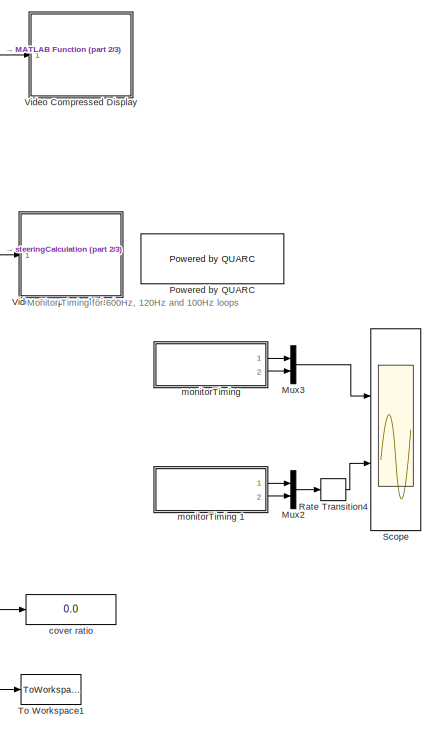
[diagram: root canvas - part 1/3, middle right region]
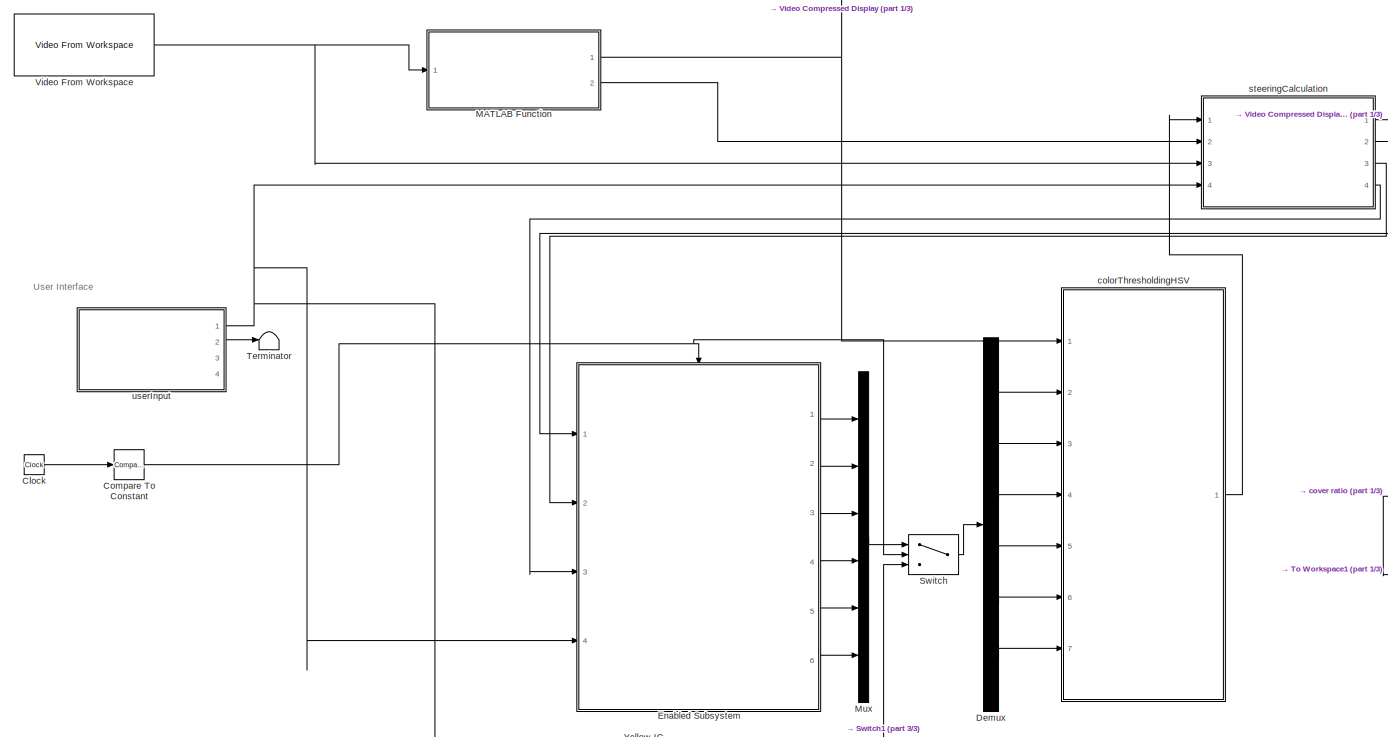
[diagram: root canvas - part 2/3, central region]
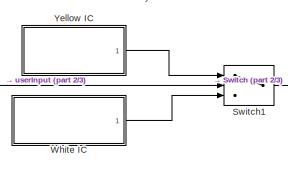
[diagram: root canvas - part 3/3, bottom center region]
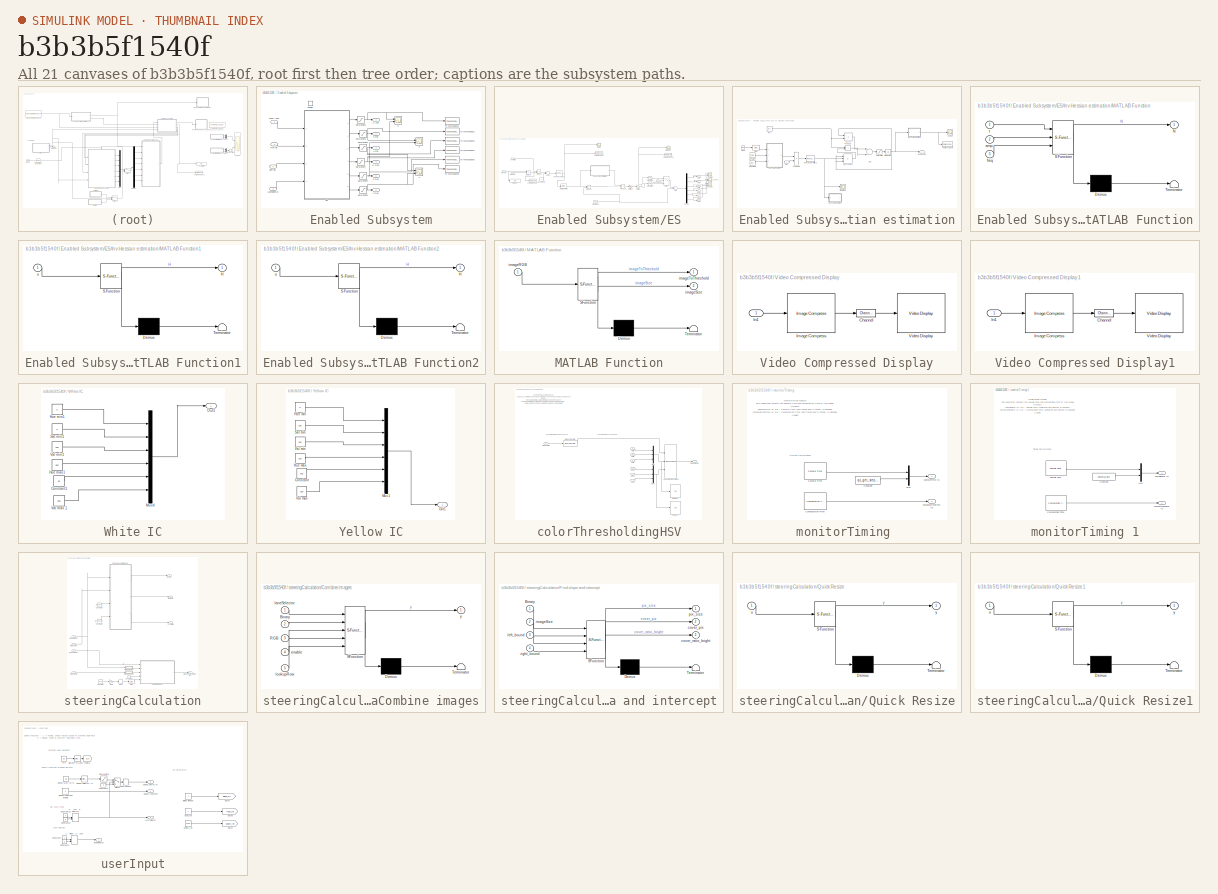
[diagram: thumbnail index - all 21 canvases of the model, root first then tree order]
MODEL slx_b3b3b5f1540f
KIND model
CONFIG AbsTol = auto
CONFIG EnableMultiTasking = off
CONFIG FixedStep = 1/120
CONFIG MaxStep = auto
CONFIG MinStep = auto
CONFIG RelTol = 1e-3
CONFIG SampleTimeConstraint = Unconstrained
CONFIG Solver = ode2
CONFIG SolverName = ode2
CONFIG StartTime = 0.0
CONFIG StopTime = 160
WORKSPACE source: MAT-file member
WORKSPACE MCOS: class17 (value not decoded)
BLOCK [Clock] Clock
BLOCK [Reference] Compare To Constant  REF=simulink/Logic and Bit
Operations/Compare
To Constant
  Ports = [1, 1]
  SourceBlock = simulink/Logic and Bit\nOperations/Compare\nTo Constant
  SourceProductBaseCode = SL
  SourceProductName = Simulink
  SourceType = Compare To Constant
BLOCK [Demux] Demux
  DisplayOption = bar
  Outputs = 6
  Ports = [1, 6]
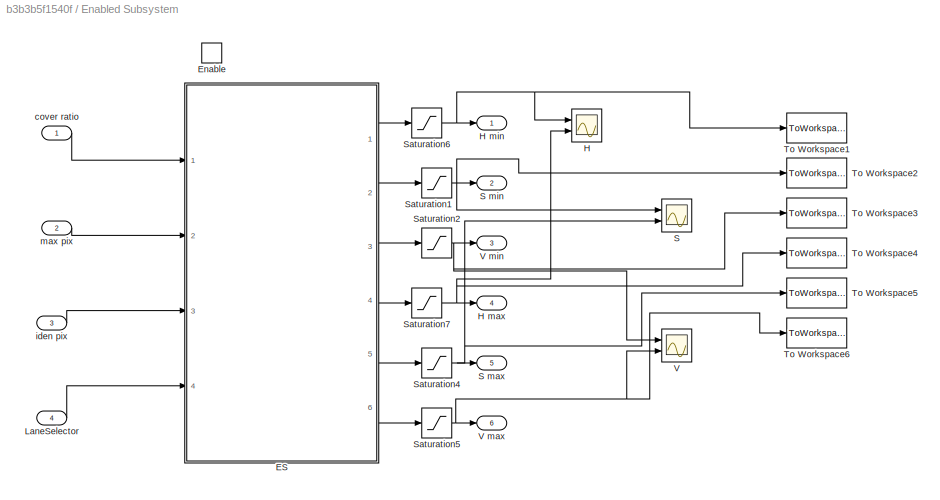
BLOCK [SubSystem] Enabled Subsystem
  Ports = [4, 6, 1]
  RequestExecContextInheritance = off
  TreatAsAtomicUnit = on
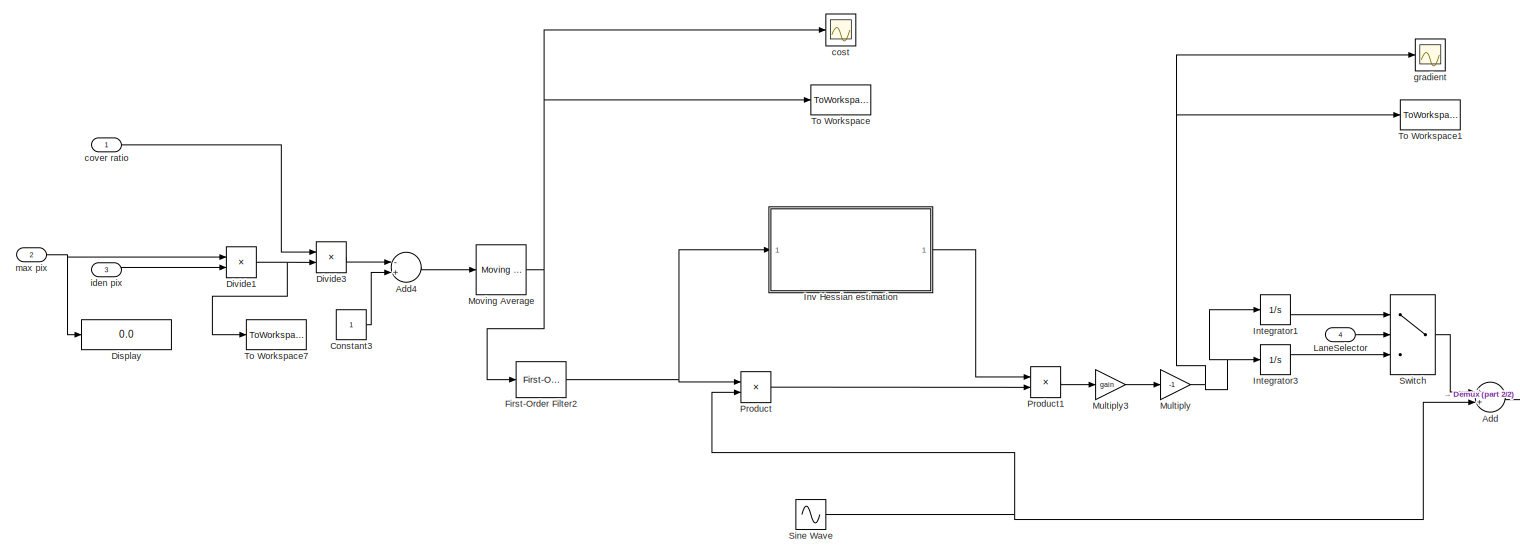
[diagram: Enabled Subsystem/ES - part 1/2, most of the canvas]
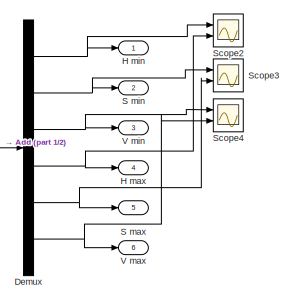
[diagram: Enabled Subsystem/ES - part 2/2, bottom right region]
BLOCK [SubSystem] Enabled Subsystem/ES
  Ports = [4, 6]
  RequestExecContextInheritance = off
BLOCK [Sum] Enabled Subsystem/ES/Add
  InputSameDT = off
  OutDataTypeStr = Inherit: Inherit via internal rule
  Ports = [2, 1]
  SaturateOnIntegerOverflow = off
BLOCK [Sum] Enabled Subsystem/ES/Add4
  InputSameDT = off
  Inputs = -+
  OutDataTypeStr = Inherit: Inherit via internal rule
  Ports = [2, 1]
  SaturateOnIntegerOverflow = off
BLOCK [Constant] Enabled Subsystem/ES/Constant3
BLOCK [Demux] Enabled Subsystem/ES/Demux
  DisplayOption = bar
  Outputs = 6
  Ports = [1, 6]
BLOCK [Display] Enabled Subsystem/ES/Display
  Decimation = 1
  Ports = [1]
BLOCK [Product] Enabled Subsystem/ES/Divide1
  InputSameDT = off
  Inputs = /*
  OutDataTypeStr = Inherit: Inherit via internal rule
  Ports = [2, 1]
  RndMeth = Floor
  SaturateOnIntegerOverflow = off
BLOCK [Product] Enabled Subsystem/ES/Divide3
  InputSameDT = off
  Inputs = **
  OutDataTypeStr = Inherit: Inherit via internal rule
  Ports = [2, 1]
  RndMeth = Floor
  SaturateOnIntegerOverflow = off
BLOCK [Reference] Enabled Subsystem/ES/First-Order Filter2  REF=powerlib_meascontrol/Filters/First-Order
Filter
  Ports = [1, 1]
  SourceBlock = powerlib_meascontrol/Filters/First-Order\nFilter
  SourceProductBaseCode = PS
  SourceProductName = Simscape Electrical
  SourceType = First-Order Filter
BLOCK [Outport] Enabled Subsystem/ES/H max
  IconDisplay = Port number
  Port = 4
BLOCK [Outport] Enabled Subsystem/ES/H min
  IconDisplay = Port number
BLOCK [Integrator] Enabled Subsystem/ES/Integrator1
  InitialCondition = [0;100;150;100;255;255]
  LowerSaturationLimit = 0
  Ports = [1, 1]
  UpperSaturationLimit = 255
BLOCK [Integrator] Enabled Subsystem/ES/Integrator3
  InitialCondition = [0;0;150;255;50;255]
  LowerSaturationLimit = 0
  Ports = [1, 1]
  UpperSaturationLimit = 255
BLOCK [SubSystem] Enabled Subsystem/ES/Inv Hessian estimation
  Ports = [1, 1]
  RequestExecContextInheritance = off
BLOCK [Sum] Enabled Subsystem/ES/Inv Hessian estimation/Add
  InputSameDT = off
  Inputs = +-
  OutDataTypeStr = Inherit: Inherit via internal rule
  Ports = [2, 1]
  SaturateOnIntegerOverflow = off
BLOCK [Bias] Enabled Subsystem/ES/Inv Hessian estimation/Bias
  Bias = -15
  SaturateOnIntegerOverflow = off
BLOCK [Clock] Enabled Subsystem/ES/Inv Hessian estimation/Clock
  Decimation = 100
BLOCK [Constant] Enabled Subsystem/ES/Inv Hessian estimation/Constant
  Value = amp
BLOCK [Constant] Enabled Subsystem/ES/Inv Hessian estimation/Constant1
  Value = freq
BLOCK [Reference] Enabled Subsystem/ES/Inv Hessian estimation/First-Order Filter2  REF=powerlib_meascontrol/Filters/First-Order
Filter
  Ports = [1, 1]
  SourceBlock = powerlib_meascontrol/Filters/First-Order\nFilter
  SourceProductBaseCode = PS
  SourceProductName = Simscape Electrical
  SourceType = First-Order Filter
BLOCK [Inport] Enabled Subsystem/ES/Inv Hessian estimation/In1
  IconDisplay = Port number
BLOCK [Integrator] Enabled Subsystem/ES/Inv Hessian estimation/Integrator
  InitialCondition = IC
  Ports = [1, 1]
BLOCK [Outport] Enabled Subsystem/ES/Inv Hessian estimation/Inv Hessian
  IconDisplay = Port number
BLOCK [SubSystem] Enabled Subsystem/ES/Inv Hessian estimation/MATLAB Function
  ErrorFcn = Stateflow.Translate.translate
  PermitHierarchicalResolution = ExplicitOnly
  Ports = [3, 1]
  RequestExecContextInheritance = off
  SFBlockType = MATLAB Function
  TreatAsAtomicUnit = on
BLOCK [Demux] Enabled Subsystem/ES/Inv Hessian estimation/MATLAB Function/ Demux 
  Outputs = 1
  Ports = [1, 1]
BLOCK [S-Function] Enabled Subsystem/ES/Inv Hessian estimation/MATLAB Function/ SFunction 
  EnableBusSupport = on
  FunctionName = sf_sfun
  PortCounts = [3 2]
  Ports = [3, 2]
  SFcnIsStateOwnerBlock = off
  SFunctionDeploymentMode = off
  Tag = Stateflow S-Function ES_experiment_newton 1
BLOCK [Terminator] Enabled Subsystem/ES/Inv Hessian estimation/MATLAB Function/ Terminator 
BLOCK [Outport] Enabled Subsystem/ES/Inv Hessian estimation/MATLAB Function/N
  IconDisplay = Port number
BLOCK [Inport] Enabled Subsystem/ES/Inv Hessian estimation/MATLAB Function/amp
  IconDisplay = Port number
  Port = 2
BLOCK [Inport] Enabled Subsystem/ES/Inv Hessian estimation/MATLAB Function/freq
  IconDisplay = Port number
  Port = 3
BLOCK [Inport] Enabled Subsystem/ES/Inv Hessian estimation/MATLAB Function/t
  IconDisplay = Port number
BLOCK [SubSystem] Enabled Subsystem/ES/Inv Hessian estimation/MATLAB Function1
  ErrorFcn = Stateflow.Translate.translate
  PermitHierarchicalResolution = ExplicitOnly
  Ports = [1, 1]
  RequestExecContextInheritance = off
  SFBlockType = MATLAB Function
  TreatAsAtomicUnit = on
BLOCK [Demux] Enabled Subsystem/ES/Inv Hessian estimation/MATLAB Function1/ Demux 
  Outputs = 1
  Ports = [1, 1]
BLOCK [S-Function] Enabled Subsystem/ES/Inv Hessian estimation/MATLAB Function1/ SFunction 
  EnableBusSupport = on
  FunctionName = sf_sfun
  PortCounts = [1 2]
  Ports = [1, 2]
  SFcnIsStateOwnerBlock = off
  SFunctionDeploymentMode = off
  Tag = Stateflow S-Function ES_experiment_newton 3
BLOCK [Terminator] Enabled Subsystem/ES/Inv Hessian estimation/MATLAB Function1/ Terminator 
BLOCK [Outport] Enabled Subsystem/ES/Inv Hessian estimation/MATLAB Function1/H
  IconDisplay = Port number
BLOCK [Inport] Enabled Subsystem/ES/Inv Hessian estimation/MATLAB Function1/u
  IconDisplay = Port number
BLOCK [SubSystem] Enabled Subsystem/ES/Inv Hessian estimation/MATLAB Function2
  ErrorFcn = Stateflow.Translate.translate
  PermitHierarchicalResolution = ExplicitOnly
  Ports = [1, 1]
  RequestExecContextInheritance = off
  SFBlockType = MATLAB Function
  TreatAsAtomicUnit = on
BLOCK [Demux] Enabled Subsystem/ES/Inv Hessian estimation/MATLAB Function2/ Demux 
  Outputs = 1
  Ports = [1, 1]
BLOCK [S-Function] Enabled Subsystem/ES/Inv Hessian estimation/MATLAB Function2/ SFunction 
  EnableBusSupport = on
  FunctionName = sf_sfun
  PortCounts = [1 2]
  Ports = [1, 2]
  SFcnIsStateOwnerBlock = off
  SFunctionDeploymentMode = off
  Tag = Stateflow S-Function ES_experiment_newton 8
BLOCK [Terminator] Enabled Subsystem/ES/Inv Hessian estimation/MATLAB Function2/ Terminator 
BLOCK [Outport] Enabled Subsystem/ES/Inv Hessian estimation/MATLAB Function2/H
  IconDisplay = Port number
BLOCK [Inport] Enabled Subsystem/ES/Inv Hessian estimation/MATLAB Function2/u
  IconDisplay = Port number
BLOCK [Product] Enabled Subsystem/ES/Inv Hessian estimation/Product
  InputSameDT = off
  OutDataTypeStr = Inherit: Inherit via internal rule
  Ports = [2, 1]
  RndMeth = Floor
  SaturateOnIntegerOverflow = off
BLOCK [Product] Enabled Subsystem/ES/Inv Hessian estimation/Product2
  InputSameDT = off
  OutDataTypeStr = Inherit: Inherit via internal rule
  Ports = [2, 1]
  RndMeth = Floor
  SaturateOnIntegerOverflow = off
BLOCK [Saturate] Enabled Subsystem/ES/Inv Hessian estimation/Saturation
  InputPortMap = u0
  LowerLimit = -10000
  Ports = [1, 1]
  UpperLimit = 10000
BLOCK [Scope] Enabled Subsystem/ES/Inv Hessian estimation/Scope
  Floating = off
  NumInputPorts = 1
  Ports = [1]
  ScopeSpecificationString = Simulink.scopes.TimeScopeBlockCfg('CurrentConfiguration', extmgr.ConfigurationSet(extmgr.Configuration('Core','General UI',true),extmgr.Configuration('Core','Source UI',true),extmgr.Configuration('Sources','WiredSimulink',true,'DataLoggingVariableName','ScopeData4'),extmgr.Configuration('Visuals','Time Domain',true,'SerializedDisplays',{struct('MinYLimReal','0.26461','MaxYLimReal','2.19282','YLabe...<+1505ch>
BLOCK [Scope] Enabled Subsystem/ES/Inv Hessian estimation/Scope1
  Floating = off
  NumInputPorts = 1
  Ports = [1]
  ScopeSpecificationString = Simulink.scopes.TimeScopeBlockCfg('CurrentConfiguration', extmgr.ConfigurationSet(extmgr.Configuration('Core','General UI',true),extmgr.Configuration('Core','Source UI',true),extmgr.Configuration('Sources','WiredSimulink',true,'DataLoggingVariableName','ScopeData5'),extmgr.Configuration('Visuals','Time Domain',true),extmgr.Configuration('Tools','Plot Navigation',true),extmgr.Configuration('Tools',...<+40ch>
BLOCK [ToWorkspace] Enabled Subsystem/ES/Inv Hessian estimation/To Workspace
  FixptAsFi = on
  MaxDataPoints = inf
  Ports = [1]
  SampleTime = -1
  SaveFormat = Timeseries
  VariableName = Hessian
BLOCK [Constant] Enabled Subsystem/ES/Inv Hessian estimation/w_r 
  Value = w_r
BLOCK [Product] Enabled Subsystem/ES/Inv Hessian estimation/w_r*T
  InputSameDT = off
  OutDataTypeStr = Inherit: Inherit via internal rule
  Ports = [2, 1]
  RndMeth = Floor
  SaturateOnIntegerOverflow = off
BLOCK [Product] Enabled Subsystem/ES/Inv Hessian estimation/w_r*T*H*T
  InputSameDT = off
  Inputs = 3
  Multiplication = Matrix(*)
  OutDataTypeStr = Inherit: Inherit via internal rule
  Ports = [3, 1]
  RndMeth = Floor
  SaturateOnIntegerOverflow = off
BLOCK [Inport] Enabled Subsystem/ES/LaneSelector
  IconDisplay = Port number
  Port = 4
BLOCK [Reference] Enabled Subsystem/ES/Moving Average  REF=dspstat3/Moving
Average
  Ports = [1, 1]
  SourceBlock = dspstat3/Moving\nAverage
  SourceProductBaseCode = DS
  SourceProductName = DSP System Toolbox
  SourceType = dsp.simulink.MovingAverage
BLOCK [Gain] Enabled Subsystem/ES/Multiply
  Gain = -1
  OutDataTypeStr = Inherit: Inherit via internal rule
  ParamDataTypeStr = Inherit: Inherit via internal rule
  SaturateOnIntegerOverflow = off
BLOCK [Gain] Enabled Subsystem/ES/Multiply3
  Gain = gain
  OutDataTypeStr = Inherit: Inherit via internal rule
  ParamDataTypeStr = Inherit: Inherit via internal rule
  SaturateOnIntegerOverflow = off
BLOCK [Product] Enabled Subsystem/ES/Product
  InputSameDT = off
  OutDataTypeStr = Inherit: Inherit via internal rule
  Ports = [2, 1]
  RndMeth = Floor
  SaturateOnIntegerOverflow = off
BLOCK [Product] Enabled Subsystem/ES/Product1
  InputSameDT = off
  Multiplication = Matrix(*)
  OutDataTypeStr = Inherit: Inherit via internal rule
  Ports = [2, 1]
  RndMeth = Floor
  SaturateOnIntegerOverflow = off
BLOCK [Outport] Enabled Subsystem/ES/S max
  IconDisplay = Port number
  Port = 5
BLOCK [Outport] Enabled Subsystem/ES/S min
  IconDisplay = Port number
  Port = 2
BLOCK [Scope] Enabled Subsystem/ES/Scope2
  Floating = off
  NumInputPorts = 2
  Ports = [2]
  ScopeSpecificationString = Simulink.scopes.TimeScopeBlockCfg('CurrentConfiguration', extmgr.ConfigurationSet(extmgr.Configuration('Core','General UI',true),extmgr.Configuration('Core','Source UI',true),extmgr.Configuration('Sources','WiredSimulink',true,'DataLoggingVariableName','ScopeData1'),extmgr.Configuration('Visuals','Time Domain',true,'SerializedDisplays',{struct('MinYLimReal','-1947.39724','MaxYLimReal','853.01055',...<+1539ch>
BLOCK [Scope] Enabled Subsystem/ES/Scope3
  Floating = off
  NumInputPorts = 2
  Ports = [2]
  ScopeSpecificationString = Simulink.scopes.TimeScopeBlockCfg('CurrentConfiguration', extmgr.ConfigurationSet(extmgr.Configuration('Core','General UI',true),extmgr.Configuration('Core','Source UI',true),extmgr.Configuration('Sources','WiredSimulink',true,'DataLoggingVariableName','ScopeData2'),extmgr.Configuration('Visuals','Time Domain',true,'SerializedDisplays',{struct('MinYLimReal','-646.49377','MaxYLimReal','897.72191','...<+1489ch>
BLOCK [Scope] Enabled Subsystem/ES/Scope4
  Floating = off
  NumInputPorts = 2
  Ports = [2]
  ScopeSpecificationString = Simulink.scopes.TimeScopeBlockCfg('CurrentConfiguration', extmgr.ConfigurationSet(extmgr.Configuration('Core','General UI',true),extmgr.Configuration('Core','Source UI',true),extmgr.Configuration('Sources','WiredSimulink',true,'DataLoggingVariableName','ScopeData3'),extmgr.Configuration('Visuals','Time Domain',true,'SerializedDisplays',{struct('MinYLimReal','113.66565','MaxYLimReal','331.58352','Y...<+1488ch>
BLOCK [Sin] Enabled Subsystem/ES/Sine Wave
  Amplitude = amp
  Frequency = freq
  Ports = [0, 1]
  SampleTime = 0
BLOCK [Switch] Enabled Subsystem/ES/Switch
  Criteria = u2 > Threshold
  InputSameDT = off
  SaturateOnIntegerOverflow = off
BLOCK [ToWorkspace] Enabled Subsystem/ES/To Workspace
  FixptAsFi = on
  MaxDataPoints = inf
  Ports = [1]
  SampleTime = -1
  SaveFormat = Timeseries
  VariableName = obj_fcn
BLOCK [ToWorkspace] Enabled Subsystem/ES/To Workspace1
  FixptAsFi = on
  MaxDataPoints = inf
  Ports = [1]
  SampleTime = -1
  SaveFormat = Timeseries
  VariableName = gradient
BLOCK [ToWorkspace] Enabled Subsystem/ES/To Workspace7
  FixptAsFi = on
  MaxDataPoints = inf
  Ports = [1]
  SampleTime = -1
  SaveFormat = Structure With Time
  VariableName = pix_ratio
BLOCK [Outport] Enabled Subsystem/ES/V max
  IconDisplay = Port number
  Port = 6
BLOCK [Outport] Enabled Subsystem/ES/V min
  IconDisplay = Port number
  Port = 3
BLOCK [Scope] Enabled Subsystem/ES/cost
  Floating = off
  NumInputPorts = 1
  Ports = [1]
  ScopeSpecificationString = Simulink.scopes.TimeScopeBlockCfg('CurrentConfiguration', extmgr.ConfigurationSet(extmgr.Configuration('Core','General UI',true),extmgr.Configuration('Core','Source UI',true),extmgr.Configuration('Sources','WiredSimulink',true,'DataLoggingVariableName','ScopeData1'),extmgr.Configuration('Visuals','Time Domain',true,'SerializedDisplays',{struct('MinYLimReal','-0.12031','MaxYLimReal','1.12448','YLab...<+1498ch>
BLOCK [Inport] Enabled Subsystem/ES/cover ratio 
  IconDisplay = Port number
BLOCK [Scope] Enabled Subsystem/ES/gradient
  Floating = off
  NumInputPorts = 1
  Ports = [1]
  ScopeSpecificationString = Simulink.scopes.TimeScopeBlockCfg('CurrentConfiguration', extmgr.ConfigurationSet(extmgr.Configuration('Core','General UI',true),extmgr.Configuration('Core','Source UI',true),extmgr.Configuration('Sources','WiredSimulink',true,'DataLoggingVariableName','ScopeData2'),extmgr.Configuration('Visuals','Time Domain',true,'SerializedDisplays',{struct('MinYLimReal','-38.4375','MaxYLimReal','45.9375','YLab...<+1473ch>
BLOCK [Inport] Enabled Subsystem/ES/iden pix
  IconDisplay = Port number
  Port = 3
BLOCK [Inport] Enabled Subsystem/ES/max pix 
  IconDisplay = Port number
  Port = 2
BLOCK [EnablePort] Enabled Subsystem/Enable
  Ports = []
BLOCK [Scope] Enabled Subsystem/H
  Floating = off
  NumInputPorts = 2
  Ports = [2]
  ScopeSpecificationString = Simulink.scopes.TimeScopeBlockCfg('CurrentConfiguration', extmgr.ConfigurationSet(extmgr.Configuration('Core','General UI',true),extmgr.Configuration('Core','Source UI',true),extmgr.Configuration('Sources','WiredSimulink',true,'DataLoggingVariableName','ScopeData4'),extmgr.Configuration('Visuals','Time Domain',true,'SerializedDisplays',{struct('MinYLimReal','-31.875','MaxYLimReal','286.875','YLabe...<+1436ch>
BLOCK [Outport] Enabled Subsystem/H max
  IconDisplay = Port number
  Port = 4
BLOCK [Outport] Enabled Subsystem/H min
  IconDisplay = Port number
BLOCK [Inport] Enabled Subsystem/LaneSelector
  IconDisplay = Port number
  Port = 4
BLOCK [Scope] Enabled Subsystem/S
  Floating = off
  NumInputPorts = 2
  Ports = [2]
  ScopeSpecificationString = Simulink.scopes.TimeScopeBlockCfg('CurrentConfiguration', extmgr.ConfigurationSet(extmgr.Configuration('Core','General UI',true),extmgr.Configuration('Core','Source UI',true),extmgr.Configuration('Sources','WiredSimulink',true,'DataLoggingVariableName','ScopeData5'),extmgr.Configuration('Visuals','Time Domain',true,'SerializedDisplays',{struct('MinYLimReal','-31.875','MaxYLimReal','286.875','YLabe...<+1483ch>
BLOCK [Outport] Enabled Subsystem/S max
  IconDisplay = Port number
  Port = 5
BLOCK [Outport] Enabled Subsystem/S min
  IconDisplay = Port number
  Port = 2
BLOCK [Saturate] Enabled Subsystem/Saturation1
  InputPortMap = u0
  LowerLimit = 0
  Ports = [1, 1]
  UpperLimit = 255
BLOCK [Saturate] Enabled Subsystem/Saturation2
  InputPortMap = u0
  LowerLimit = 0
  Ports = [1, 1]
  UpperLimit = 255
BLOCK [Saturate] Enabled Subsystem/Saturation4
  InputPortMap = u0
  LowerLimit = 0
  Ports = [1, 1]
  UpperLimit = 255
BLOCK [Saturate] Enabled Subsystem/Saturation5
  InputPortMap = u0
  LowerLimit = 0
  Ports = [1, 1]
  UpperLimit = 255
BLOCK [Saturate] Enabled Subsystem/Saturation6
  InputPortMap = u0
  LowerLimit = 0
  Ports = [1, 1]
  UpperLimit = 255
BLOCK [Saturate] Enabled Subsystem/Saturation7
  InputPortMap = u0
  LowerLimit = 0
  Ports = [1, 1]
  UpperLimit = 255
BLOCK [ToWorkspace] Enabled Subsystem/To Workspace1
  FixptAsFi = on
  MaxDataPoints = inf
  Ports = [1]
  SampleTime = -1
  Save2DSignal = 2-D array (concatenate along first dimension)
  VariableName = H_min
BLOCK [ToWorkspace] Enabled Subsystem/To Workspace2
  FixptAsFi = on
  MaxDataPoints = inf
  Ports = [1]
  SampleTime = -1
  Save2DSignal = 2-D array (concatenate along first dimension)
  VariableName = S_min
BLOCK [ToWorkspace] Enabled Subsystem/To Workspace3
  FixptAsFi = on
  MaxDataPoints = inf
  Ports = [1]
  SampleTime = -1
  Save2DSignal = 2-D array (concatenate along first dimension)
  VariableName = V_min
BLOCK [ToWorkspace] Enabled Subsystem/To Workspace4
  FixptAsFi = on
  MaxDataPoints = inf
  Ports = [1]
  SampleTime = -1
  Save2DSignal = 2-D array (concatenate along first dimension)
  VariableName = H_max
BLOCK [ToWorkspace] Enabled Subsystem/To Workspace5
  FixptAsFi = on
  MaxDataPoints = inf
  Ports = [1]
  SampleTime = -1
  Save2DSignal = 2-D array (concatenate along first dimension)
  VariableName = S_max
BLOCK [ToWorkspace] Enabled Subsystem/To Workspace6
  FixptAsFi = on
  MaxDataPoints = inf
  Ports = [1]
  SampleTime = -1
  Save2DSignal = 2-D array (concatenate along first dimension)
  VariableName = V_max
BLOCK [Scope] Enabled Subsystem/V
  Floating = off
  NumInputPorts = 2
  Ports = [2]
  ScopeSpecificationString = Simulink.scopes.TimeScopeBlockCfg('CurrentConfiguration', extmgr.ConfigurationSet(extmgr.Configuration('Core','General UI',true),extmgr.Configuration('Core','Source UI',true),extmgr.Configuration('Sources','WiredSimulink',true,'DataLoggingVariableName','ScopeData6'),extmgr.Configuration('Visuals','Time Domain',true,'SerializedDisplays',{struct('MinYLimReal','-31.875','MaxYLimReal','286.875','YLabe...<+1483ch>
BLOCK [Outport] Enabled Subsystem/V max
  IconDisplay = Port number
  Port = 6
BLOCK [Outport] Enabled Subsystem/V min
  IconDisplay = Port number
  Port = 3
BLOCK [Inport] Enabled Subsystem/cover ratio
  IconDisplay = Port number
BLOCK [Inport] Enabled Subsystem/iden pix
  IconDisplay = Port number
  Port = 3
BLOCK [Inport] Enabled Subsystem/max pix
  IconDisplay = Port number
  Port = 2
BLOCK [SubSystem] MATLAB Function
  ErrorFcn = Stateflow.Translate.translate
  PermitHierarchicalResolution = ExplicitOnly
  Ports = [1, 2]
  RequestExecContextInheritance = off
  SFBlockType = MATLAB Function
  TreatAsAtomicUnit = on
BLOCK [Demux] MATLAB Function/ Demux 
  DisplayOption = bar
  Outputs = 1
  Ports = [1, 1]
BLOCK [S-Function] MATLAB Function/ SFunction 
  EnableBusSupport = on
  FunctionName = sf_sfun
  PortCounts = [1 3]
  Ports = [1, 3]
  SFcnIsStateOwnerBlock = off
  SFunctionDeploymentMode = off
  Tag = Stateflow S-Function ES_experiment_newton 11
BLOCK [Terminator] MATLAB Function/ Terminator 
BLOCK [Inport] MATLAB Function/imageRGB
  IconDisplay = Port number
BLOCK [Outport] MATLAB Function/imageSize
  IconDisplay = Port number
  Port = 2
BLOCK [Outport] MATLAB Function/imageToThreshold
  IconDisplay = Port number
BLOCK [Mux] Mux
  DisplayOption = bar
  Inputs = 6
  Ports = [6, 1]
BLOCK [Mux] Mux2
  DisplayOption = bar
  Inputs = 2
  Ports = [2, 1]
BLOCK [Mux] Mux3
  DisplayOption = bar
  Inputs = 2
  Ports = [2, 1]
BLOCK [Reference] Powered by QUARC  REF=quarc_library/Logos/Powered by QUARC
  Ports = []
  SourceBlock = quarc_library/Logos/Powered by QUARC
  SourceProductName = QUARC Targets
  SourceType = Powered by QUARC
BLOCK [RateTransition] Rate Transition4
BLOCK [Scope] Scope
  Floating = off
  NumInputPorts = 2
  Ports = [2]
  ScopeSpecificationString = Simulink.scopes.TimeScopeBlockCfg('CurrentConfiguration', extmgr.ConfigurationSet(extmgr.Configuration('Core','General UI',true),extmgr.Configuration('Core','Source UI',true),extmgr.Configuration('Sources','WiredSimulink',true,'DataLoggingVariableName','ScopeData1'),extmgr.Configuration('Visuals','Time Domain',true,'SerializedDisplays',{struct('MinYLimReal','-0.00084','MaxYLimReal','0.00516','YLab...<+2757ch>
BLOCK [Switch] Switch
  Criteria = u2 > Threshold
  InputSameDT = off
  SaturateOnIntegerOverflow = off
BLOCK [Switch] Switch1
  Criteria = u2 > Threshold
  InputSameDT = off
  SaturateOnIntegerOverflow = off
BLOCK [Terminator] Terminator
BLOCK [ToWorkspace] To Workspace1
  FixptAsFi = on
  MaxDataPoints = inf
  Ports = [1]
  SampleTime = -1
  Save2DSignal = 2-D array (concatenate along first dimension)
  SaveFormat = Structure With Time
  VariableName = cover_ratio
BLOCK [SubSystem] Video Compressed Display
  CopyFcn = set_param(gcbh, 'UserData', gcb);\nset_param(gcbh, 'LinkStatus', 'none');
  LoadFcn = set_param(gcbh, 'UserData', gcb);
  NameChangeFcn = video_display_show([get_param(gcbh, 'UserData'), '/Video Display'], 'rename', [gcb, '/Video Display']);\nvideo_display_show([gcb, '/Video Display'], 'add', gcb);\nset_param(gcbh, 'UserData', gcb);
  OpenFcn = video_display_show([gcb, '/Video Display'], 'show', gcb);
  Ports = [1]
  PreDeleteFcn = video_display_show([gcb, '/Video Display'], 'delete');
  RequestExecContextInheritance = off
  StartFcn = video_display_show([gcb, '/Video Display'], 'add', gcb);
  UndoDeleteFcn = set_param(gcbh, 'UserData', gcb);
BLOCK [Reference] Video Compressed Display/Channel  REF=quarc_library/Signal Routing/Channel
  Ports = [1, 1]
  SourceBlock = quarc_library/Signal Routing/Channel
  SourceProductName = QUARC Targets
  SourceType = Channel
BLOCK [Reference] Video Compressed Display/Image Compress  REF=quarc_library/Image Processing/Generic/Image Compress
  AttributesFormatString = (%<algorithm>)
  Ports = [1, 1]
  SourceBlock = quarc_library/Image Processing/Generic/Image Compress
  SourceProductName = QUARC Targets
  SourceType = Image Compress
BLOCK [Inport] Video Compressed Display/In1
  IconDisplay = Port number
BLOCK [Reference] Video Compressed Display/Video Display  REF=quarc_library/Multimedia/Video Display
  Ports = [1]
  SourceBlock = quarc_library/Multimedia/Video Display
  SourceProductName = QUARC Targets
  SourceType = Video Display
  Tag = ES_experiment_newton/Video Compressed\nDisplay/Video Display
  UserDataPersistent = on
BLOCK [SubSystem] Video Compressed Display1
  Commented = on
  CopyFcn = set_param(gcbh, 'UserData', gcb);\nset_param(gcbh, 'LinkStatus', 'none');
  LoadFcn = set_param(gcbh, 'UserData', gcb);
  NameChangeFcn = video_display_show([get_param(gcbh, 'UserData'), '/Video Display'], 'rename', [gcb, '/Video Display']);\nvideo_display_show([gcb, '/Video Display'], 'add', gcb);\nset_param(gcbh, 'UserData', gcb);
  OpenFcn = video_display_show([gcb, '/Video Display'], 'show', gcb);
  Ports = [1]
  PreDeleteFcn = video_display_show([gcb, '/Video Display'], 'delete');
  RequestExecContextInheritance = off
  StartFcn = video_display_show([gcb, '/Video Display'], 'add', gcb);
  UndoDeleteFcn = set_param(gcbh, 'UserData', gcb);
BLOCK [Reference] Video Compressed Display1/Channel  REF=quarc_library/Signal Routing/Channel
  Ports = [1, 1]
  SourceBlock = quarc_library/Signal Routing/Channel
  SourceProductName = QUARC Targets
  SourceType = Channel
BLOCK [Reference] Video Compressed Display1/Image Compress  REF=quarc_library/Image Processing/Generic/Image Compress
  AttributesFormatString = (%<algorithm>)
  Ports = [1, 1]
  SourceBlock = quarc_library/Image Processing/Generic/Image Compress
  SourceProductName = QUARC Targets
  SourceType = Image Compress
BLOCK [Inport] Video Compressed Display1/In1
  IconDisplay = Port number
BLOCK [Reference] Video Compressed Display1/Video Display  REF=quarc_library/Multimedia/Video Display
  Ports = [1]
  SourceBlock = quarc_library/Multimedia/Video Display
  SourceProductName = QUARC Targets
  SourceType = Video Display
  Tag = ES_experiment_newton/Video Compressed\nDisplay1/Video Display
  UserDataPersistent = on
BLOCK [Reference] Video From Workspace  REF=visionsources/Video From Workspace
  Ports = [0, 1]
  SourceBlock = visionsources/Video From Workspace
  SourceProductBaseCode = VP
  SourceProductName = Computer Vision Toolbox
  SourceType = Video From Workspace
BLOCK [SubSystem] White IC
  Ports = [0, 1]
  RequestExecContextInheritance = off
BLOCK [Constant] White IC/Constant1
  Value = 50
BLOCK [Constant] White IC/Hue max1
  Value = 255
BLOCK [Constant] White IC/Hue min1
  Value = 0
BLOCK [Mux] White IC/Mux4
  DisplayOption = bar
  Inputs = 6
  Ports = [6, 1]
BLOCK [Outport] White IC/Out1
  IconDisplay = Port number
BLOCK [Constant] White IC/Sat min1
  Value = 0
BLOCK [Constant] White IC/Val max 1
  Value = 255
BLOCK [Constant] White IC/Val min1
  Value = 150
BLOCK [SubSystem] Yellow IC
  Ports = [0, 1]
  RequestExecContextInheritance = off
BLOCK [Constant] Yellow IC/Constant
  Value = 255
BLOCK [Constant] Yellow IC/Hue max
  Value = 100
BLOCK [Constant] Yellow IC/Hue min
  Value = 0
BLOCK [Mux] Yellow IC/Mux1
  DisplayOption = bar
  Inputs = 6
  Ports = [6, 1]
BLOCK [Outport] Yellow IC/Out1
  IconDisplay = Port number
BLOCK [Constant] Yellow IC/Sat min
  Value = 100
BLOCK [Constant] Yellow IC/Val max 
  Value = 255
BLOCK [Constant] Yellow IC/Val min
  Value = 150
BLOCK [SubSystem] colorThresholdingHSV
  Ports = [7, 1]
  RequestExecContextInheritance = off
BLOCK [Display] colorThresholdingHSV/Display1
  Decimation = 1
  Ports = [1]
BLOCK [Display] colorThresholdingHSV/Display2
  Decimation = 1
  Ports = [1]
BLOCK [Inport] colorThresholdingHSV/H max
  IconDisplay = Port number
  Port = 5
BLOCK [Inport] colorThresholdingHSV/H min
  IconDisplay = Port number
  Port = 2
BLOCK [Reference] colorThresholdingHSV/HSV Color Thresholding  REF=quarc_library/Image Processing/Generic/Image Compare
  Ports = [3, 1]
  SourceBlock = quarc_library/Image Processing/Generic/Image Compare
  SourceProductName = QUARC Targets
  SourceType = Image Compare
BLOCK [Reference] colorThresholdingHSV/Image Transform  REF=quarc_library/Image Processing/Generic/Image Transform
  AttributesFormatString = (%<algorithm>)
  Ports = [1, 1]
  SourceBlock = quarc_library/Image Processing/Generic/Image Transform
  SourceProductName = QUARC Targets
  SourceType = Image Transform
BLOCK [Mux] colorThresholdingHSV/Mux
  DisplayOption = bar
  Inputs = 3
  Ports = [3, 1]
BLOCK [Mux] colorThresholdingHSV/Mux1
  DisplayOption = bar
  Inputs = 3
  Ports = [3, 1]
BLOCK [Inport] colorThresholdingHSV/S max
  IconDisplay = Port number
  Port = 6
BLOCK [Inport] colorThresholdingHSV/S min
  IconDisplay = Port number
  Port = 3
BLOCK [Inport] colorThresholdingHSV/V max
  IconDisplay = Port number
  Port = 7
BLOCK [Inport] colorThresholdingHSV/V min
  IconDisplay = Port number
  Port = 4
BLOCK [Outport] colorThresholdingHSV/imageBinary
  IconDisplay = Port number
BLOCK [Inport] colorThresholdingHSV/imageRGB
  IconDisplay = Port number
BLOCK [Display] cover ratio
  Decimation = 1
  Ports = [1]
BLOCK [SubSystem] monitorTiming 
  Ports = [0, 2]
  RequestExecContextInheritance = off
BLOCK [Reference] monitorTiming /Computation Time  REF=quarc_library/Sources/Time/Computation Time
  Ports = [0, 1]
  SourceBlock = quarc_library/Sources/Time/Computation Time
  SourceProductName = QUARC Targets
  SourceType = Computation Time
BLOCK [Constant] monitorTiming /Constant
  SampleTime = -1
  Value = qc_get_step_size
BLOCK [Mux] monitorTiming /Mux
  DisplayOption = bar
  Inputs = 2
  Ports = [2, 1]
BLOCK [Reference] monitorTiming /Sample Time  REF=quarc_library/Sources/Time/Sample Time
  Ports = [0, 1]
  Priority = -99
  SourceBlock = quarc_library/Sources/Time/Sample Time
  SourceProductName = QUARC Targets
  SourceType = Sample Time
BLOCK [Outport] monitorTiming /computationTime (s)
  IconDisplay = Port number
  Port = 2
BLOCK [Outport] monitorTiming /sampleTime (s)
  IconDisplay = Port number
BLOCK [SubSystem] monitorTiming 1
  Ports = [0, 2]
  RequestExecContextInheritance = off
BLOCK [Reference] monitorTiming 1/Computation Time  REF=quarc_library/Sources/Time/Computation Time
  Ports = [0, 1]
  SourceBlock = quarc_library/Sources/Time/Computation Time
  SourceProductName = QUARC Targets
  SourceType = Computation Time
BLOCK [Constant] monitorTiming 1/Constant
  SampleTime = camera_rate
  Value = camera_rate
BLOCK [Mux] monitorTiming 1/Mux
  DisplayOption = bar
  Inputs = 2
  Ports = [2, 1]
BLOCK [Reference] monitorTiming 1/Sample Time  REF=quarc_library/Sources/Time/Sample Time
  Ports = [0, 1]
  Priority = -99
  SourceBlock = quarc_library/Sources/Time/Sample Time
  SourceProductName = QUARC Targets
  SourceType = Sample Time
BLOCK [Outport] monitorTiming 1/computationTime (s)
  IconDisplay = Port number
  Port = 2
BLOCK [Outport] monitorTiming 1/sampleTime (s)
  IconDisplay = Port number
BLOCK [SubSystem] steeringCalculation
  Ports = [4, 4]
  RequestExecContextInheritance = off
BLOCK [Bias] steeringCalculation/Bias
  Bias = 1
  Commented = on
  SaturateOnIntegerOverflow = off
BLOCK [SubSystem] steeringCalculation/Combine images
  Commented = on
  ErrorFcn = Stateflow.Translate.translate
  PermitHierarchicalResolution = ExplicitOnly
  Ports = [5, 1]
  RequestExecContextInheritance = off
  SFBlockType = MATLAB Function
  TreatAsAtomicUnit = on
BLOCK [Demux] steeringCalculation/Combine images/ Demux 
  DisplayOption = bar
  Outputs = 1
  Ports = [1, 1]
BLOCK [S-Function] steeringCalculation/Combine images/ SFunction 
  EnableBusSupport = on
  FunctionName = sf_sfun
  PortCounts = [5 2]
  Ports = [5, 2]
  SFcnIsStateOwnerBlock = off
  SFunctionDeploymentMode = off
  Tag = Stateflow S-Function ES_experiment_newton 6
BLOCK [Terminator] steeringCalculation/Combine images/ Terminator 
BLOCK [Inport] steeringCalculation/Combine images/Binary
  IconDisplay = Port number
  Port = 2
BLOCK [Inport] steeringCalculation/Combine images/RGB
  IconDisplay = Port number
  Port = 3
BLOCK [Inport] steeringCalculation/Combine images/enable
  IconDisplay = Port number
  Port = 4
BLOCK [Inport] steeringCalculation/Combine images/laneSelector
  IconDisplay = Port number
BLOCK [Inport] steeringCalculation/Combine images/lookupRow
  IconDisplay = Port number
  Port = 5
BLOCK [Outport] steeringCalculation/Combine images/y
  IconDisplay = Port number
BLOCK [Constant] steeringCalculation/Constant
  Commented = on
  Value = 220
BLOCK [Constant] steeringCalculation/Constant1
  Value = left_bound
BLOCK [Constant] steeringCalculation/Constant2
  Value = right_bound
BLOCK [Constant] steeringCalculation/Constant4
  Commented = on
BLOCK [SubSystem] steeringCalculation/Find slope and intercept
  ErrorFcn = Stateflow.Translate.translate
  PermitHierarchicalResolution = ExplicitOnly
  Ports = [4, 3]
  RequestExecContextInheritance = off
  SFBlockType = MATLAB Function
  TreatAsAtomicUnit = on
BLOCK [Demux] steeringCalculation/Find slope and intercept/ Demux 
  DisplayOption = bar
  Outputs = 1
  Ports = [1, 1]
BLOCK [S-Function] steeringCalculation/Find slope and intercept/ SFunction 
  EnableBusSupport = on
  FunctionName = sf_sfun
  PortCounts = [4 4]
  Ports = [4, 4]
  SFcnIsStateOwnerBlock = off
  SFunctionDeploymentMode = off
  Tag = Stateflow S-Function ES_experiment_newton 2
BLOCK [Terminator] steeringCalculation/Find slope and intercept/ Terminator 
BLOCK [Inport] steeringCalculation/Find slope and intercept/Binary
  IconDisplay = Port number
BLOCK [Outport] steeringCalculation/Find slope and intercept/cover_pix
  IconDisplay = Port number
  Port = 2
BLOCK [Outport] steeringCalculation/Find slope and intercept/cover_ratio_bright
  IconDisplay = Port number
  Port = 3
BLOCK [Inport] steeringCalculation/Find slope and intercept/imageSize
  IconDisplay = Port number
  Port = 2
BLOCK [Inport] steeringCalculation/Find slope and intercept/left_bound
  IconDisplay = Port number
  Port = 3
BLOCK [Outport] steeringCalculation/Find slope and intercept/pix_size
  IconDisplay = Port number
BLOCK [Inport] steeringCalculation/Find slope and intercept/right_bound
  IconDisplay = Port number
  Port = 4
BLOCK [Rounding] steeringCalculation/Floor
  Commented = on
BLOCK [Gain] steeringCalculation/Gain
  Commented = on
  Gain = 0.33
  OutDataTypeStr = Inherit: Inherit via internal rule
  ParamDataTypeStr = Inherit: Inherit via internal rule
  SaturateOnIntegerOverflow = off
BLOCK [SubSystem] steeringCalculation/Quick Resize
  Commented = on
  ErrorFcn = Stateflow.Translate.translate
  PermitHierarchicalResolution = ExplicitOnly
  Ports = [1, 1]
  RequestExecContextInheritance = off
  SFBlockType = MATLAB Function
  TreatAsAtomicUnit = on
BLOCK [Demux] steeringCalculation/Quick Resize/ Demux 
  DisplayOption = bar
  Outputs = 1
  Ports = [1, 1]
BLOCK [S-Function] steeringCalculation/Quick Resize/ SFunction 
  EnableBusSupport = on
  FunctionName = sf_sfun
  PortCounts = [1 2]
  Ports = [1, 2]
  SFcnIsStateOwnerBlock = off
  SFunctionDeploymentMode = off
  Tag = Stateflow S-Function ES_experiment_newton 5
BLOCK [Terminator] steeringCalculation/Quick Resize/ Terminator 
BLOCK [Inport] steeringCalculation/Quick Resize/u
  IconDisplay = Port number
BLOCK [Outport] steeringCalculation/Quick Resize/y
  IconDisplay = Port number
BLOCK [SubSystem] steeringCalculation/Quick Resize1
  Commented = on
  ErrorFcn = Stateflow.Translate.translate
  PermitHierarchicalResolution = ExplicitOnly
  Ports = [1, 1]
  RequestExecContextInheritance = off
  SFBlockType = MATLAB Function
  TreatAsAtomicUnit = on
BLOCK [Demux] steeringCalculation/Quick Resize1/ Demux 
  DisplayOption = bar
  Outputs = 1
  Ports = [1, 1]
BLOCK [S-Function] steeringCalculation/Quick Resize1/ SFunction 
  EnableBusSupport = on
  FunctionName = sf_sfun
  PortCounts = [1 2]
  Ports = [1, 2]
  SFcnIsStateOwnerBlock = off
  SFunctionDeploymentMode = off
  Tag = Stateflow S-Function ES_experiment_newton 9
BLOCK [Terminator] steeringCalculation/Quick Resize1/ Terminator 
BLOCK [Inport] steeringCalculation/Quick Resize1/u
  IconDisplay = Port number
BLOCK [Outport] steeringCalculation/Quick Resize1/y
  IconDisplay = Port number
BLOCK [Outport] steeringCalculation/cover ratio 
  IconDisplay = Port number
  Port = 2
BLOCK [Outport] steeringCalculation/iden pix
  IconDisplay = Port number
  Port = 4
BLOCK [Inport] steeringCalculation/imageBinary
  IconDisplay = Port number
BLOCK [Inport] steeringCalculation/imageRGB
  IconDisplay = Port number
  Port = 3
BLOCK [Outport] steeringCalculation/imageRGBForDisplay
  IconDisplay = Port number
BLOCK [Inport] steeringCalculation/imageSize
  IconDisplay = Port number
  Port = 2
BLOCK [Inport] steeringCalculation/laneSelector
  IconDisplay = Port number
  Port = 4
BLOCK [Outport] steeringCalculation/max pix
  IconDisplay = Port number
  Port = 3
BLOCK [SubSystem] userInput
  Ports = [0, 4]
  RequestExecContextInheritance = off
BLOCK [ManualSwitch] userInput/1 - Arm, 0 - Disarm1
  CurrentSetting = 0
BLOCK [ManualSwitch] userInput/1 - Right, 0 - Left
  CurrentSetting = 0
BLOCK [Outport] userInput/Arm//Disarm
  IconDisplay = Port number
  Port = 2
BLOCK [Constant] userInput/Constant10
BLOCK [Constant] userInput/Constant3
  Value = 0
BLOCK [Constant] userInput/Constant4
BLOCK [Constant] userInput/Constant8
  Value = 0
BLOCK [Constant] userInput/Constant9
  Value = 0
BLOCK [Reference] userInput/Distane To Lane (0)   REF=simulink/Math
Operations/Slider
Gain
  Ports = [1, 1]
  SourceBlock = simulink/Math\nOperations/Slider\nGain
  SourceProductBaseCode = SL
  SourceType = Slider Gain
BLOCK [Goto] userInput/Goto
  GotoTag = b_n
  TagVisibility = global
BLOCK [Goto] userInput/Goto1
  GotoTag = bright_ref
  TagVisibility = global
BLOCK [Goto] userInput/Goto2
  GotoTag = slding_window
  TagVisibility = global
BLOCK [Goto] userInput/Goto5
  GotoTag = ratio_ref
  TagVisibility = global
BLOCK [RateLimiter] userInput/Rate Limiter
  FallingSlewLimit = -Inf
  SampleTimeMode = inherited
BLOCK [Saturate] userInput/Saturation1
  InputPortMap = u0
  LowerLimit = 0
  Ports = [1, 1]
  UpperLimit = 1
BLOCK [Constant] userInput/Sliding window
  Value = 2
BLOCK [Outport] userInput/Speed Des(m//s)
  IconDisplay = Port number
  Port = 3
BLOCK [Constant] userInput/Speed Max (m//s)
  Value = 1.5
BLOCK [Reference] userInput/Speed Selector (1)  REF=simulink/Math
Operations/Slider
Gain
  Ports = [1, 1]
  SourceBlock = simulink/Math\nOperations/Slider\nGain
  SourceProductBaseCode = SL
  SourceType = Slider Gain
BLOCK [Outport] userInput/Speed reduction
  IconDisplay = Port number
  Port = 4
BLOCK [Constant] userInput/Speed reduction enable
  Value = 0
BLOCK [Switch] userInput/Switch
  Criteria = u2 > Threshold
  InputSameDT = off
  SaturateOnIntegerOverflow = off
BLOCK [Constant] userInput/b_n
  Value = 50
BLOCK [Constant] userInput/bright_ref
  Value = 2000
BLOCK [Outport] userInput/laneSelector
  IconDisplay = Port number
BLOCK [Constant] userInput/ratio_ref
ANNOTATION (root): Monitor Timing for 600Hz, 120Hz and 100Hz loops
ANNOTATION (root): User Interface
ANNOTATION colorThresholdingHSV: HSV-Color Thresholding Module: This subsystem thresholds a given RGB image based on the desired colour and hue Inputs: imageRGB (uint8) {0,255} : Input RGB Image to be thresholded desiredHue (int) {-1}U{0,360} : Desired Hue to threshold around (provided in the 0-360 degree range, see the color wheel for hue selection) Set the desired hue to -1 if you are interested in thresholding for white [Sat_m...<+731ch>
ANNOTATION colorThresholdingHSV: Generate the thresholded binary
ANNOTATION colorThresholdingHSV: Transform RGB Image to an HSV one
ANNOTATION monitorTiming : moniorTiming Module: This subsystem outputs the sample time and computation time of the model. Outputs: sampleTime (s) n/a : Sample time (unfiltered and filtered) in seconds. computationTime (s) n/a : Computation time (unfiltered and filtered) in seconds. Usage: Compare the Sample Time (s) output to a constant (qc_get_step_size) to monitor whether or not the desired sample time is being achieved. ...<+145ch>
ANNOTATION monitorTiming : Timing Performance
ANNOTATION monitorTiming 1: moniorTiming Module: This subsystem outputs the sample time and computation time of the model. Outputs: sampleTime (s) n/a : Sample time (unfiltered and filtered) in seconds. computationTime (s) n/a : Computation time (unfiltered and filtered) in seconds. Usage: Compare the Sample Time (s) output to a constant (qc_get_step_size) to monitor whether or not the desired sample time is being achieved. ...<+145ch>
ANNOTATION monitorTiming 1: Timing Performance
ANNOTATION userInput: Car Start/Stop
ANNOTATION userInput: ES Parameters
ANNOTATION userInput: Lane Selection
ANNOTATION userInput: Speed & Obstacle Stopping Distance
ANNOTATION userInput: Speed reduction --- 1 -> enable, speed reduces based on steering angle input 0 -> disable, speed is constant regardless steering input
ANNOTATION userInput: Steering Angle calculation
LINE Clock:1 -> Compare To Constant:1
NET Compare To Constant:1 -> Enabled Subsystem:enable, Switch:2
LINE Demux:1 -> colorThresholdingHSV:2
LINE Demux:2 -> colorThresholdingHSV:3
LINE Demux:3 -> colorThresholdingHSV:4
LINE Demux:4 -> colorThresholdingHSV:5
LINE Demux:5 -> colorThresholdingHSV:6
LINE Demux:6 -> colorThresholdingHSV:7
LINE Enabled Subsystem/ES/Add4:1 -> Enabled Subsystem/ES/Moving Average:1
LINE Enabled Subsystem/ES/Add:1 -> Enabled Subsystem/ES/Demux:1
LINE Enabled Subsystem/ES/Constant3:1 -> Enabled Subsystem/ES/Add4:2
NET Enabled Subsystem/ES/Demux:1 -> Enabled Subsystem/ES/H min:1, Enabled Subsystem/ES/Scope2:1
NET Enabled Subsystem/ES/Demux:2 -> Enabled Subsystem/ES/S min:1, Enabled Subsystem/ES/Scope3:1
NET Enabled Subsystem/ES/Demux:3 -> Enabled Subsystem/ES/Scope4:1, Enabled Subsystem/ES/V min:1
NET Enabled Subsystem/ES/Demux:4 -> Enabled Subsystem/ES/H max:1, Enabled Subsystem/ES/Scope2:2
NET Enabled Subsystem/ES/Demux:5 -> Enabled Subsystem/ES/S max:1, Enabled Subsystem/ES/Scope3:2
NET Enabled Subsystem/ES/Demux:6 -> Enabled Subsystem/ES/Scope4:2, Enabled Subsystem/ES/V max:1
NET Enabled Subsystem/ES/Divide1:1 -> Enabled Subsystem/ES/Divide3:2, Enabled Subsystem/ES/To Workspace7:1
LINE Enabled Subsystem/ES/Divide3:1 -> Enabled Subsystem/ES/Add4:1
NET Enabled Subsystem/ES/First-Order Filter2:1 -> Enabled Subsystem/ES/Inv Hessian estimation:1, Enabled Subsystem/ES/Product:1
LINE Enabled Subsystem/ES/Integrator1:1 -> Enabled Subsystem/ES/Switch:1
LINE Enabled Subsystem/ES/Integrator3:1 -> Enabled Subsystem/ES/Switch:3
LINE Enabled Subsystem/ES/Inv Hessian estimation/Add:1 -> Enabled Subsystem/ES/Inv Hessian estimation/Saturation:1
LINE Enabled Subsystem/ES/Inv Hessian estimation/Bias:1 -> Enabled Subsystem/ES/Inv Hessian estimation/MATLAB Function:1
LINE Enabled Subsystem/ES/Inv Hessian estimation/Clock:1 -> Enabled Subsystem/ES/Inv Hessian estimation/Bias:1
LINE Enabled Subsystem/ES/Inv Hessian estimation/Constant1:1 -> Enabled Subsystem/ES/Inv Hessian estimation/MATLAB Function:3
LINE Enabled Subsystem/ES/Inv Hessian estimation/Constant:1 -> Enabled Subsystem/ES/Inv Hessian estimation/MATLAB Function:2
NET Enabled Subsystem/ES/Inv Hessian estimation/First-Order Filter2:1 -> Enabled Subsystem/ES/Inv Hessian estimation/MATLAB Function1:1, Enabled Subsystem/ES/Inv Hessian estimation/Scope1:1, Enabled Subsystem/ES/Inv Hessian estimation/w_r*T*H*T:2
LINE Enabled Subsystem/ES/Inv Hessian estimation/In1:1 -> Enabled Subsystem/ES/Inv Hessian estimation/Product2:2
NET Enabled Subsystem/ES/Inv Hessian estimation/Integrator:1 -> Enabled Subsystem/ES/Inv Hessian estimation/Inv Hessian:1, Enabled Subsystem/ES/Inv Hessian estimation/MATLAB Function2:1, Enabled Subsystem/ES/Inv Hessian estimation/w_r*T*H*T:1, Enabled Subsystem/ES/Inv Hessian estimation/w_r*T*H*T:3, Enabled Subsystem/ES/Inv Hessian estimation/w_r*T:1
NET Enabled Subsystem/ES/Inv Hessian estimation/MATLAB Function2:1 -> Enabled Subsystem/ES/Inv Hessian estimation/Scope:1, Enabled Subsystem/ES/Inv Hessian estimation/To Workspace:1
LINE Enabled Subsystem/ES/Inv Hessian estimation/MATLAB Function:1 -> Enabled Subsystem/ES/Inv Hessian estimation/Product2:1
LINE Enabled Subsystem/ES/Inv Hessian estimation/Product2:1 -> Enabled Subsystem/ES/Inv Hessian estimation/First-Order Filter2:1
LINE Enabled Subsystem/ES/Inv Hessian estimation/Product:1 -> Enabled Subsystem/ES/Inv Hessian estimation/Add:2
LINE Enabled Subsystem/ES/Inv Hessian estimation/Saturation:1 -> Enabled Subsystem/ES/Inv Hessian estimation/Integrator:1
NET Enabled Subsystem/ES/Inv Hessian estimation/w_r :1 -> Enabled Subsystem/ES/Inv Hessian estimation/Product:1, Enabled Subsystem/ES/Inv Hessian estimation/w_r*T:2
LINE Enabled Subsystem/ES/Inv Hessian estimation/w_r*T*H*T:1 -> Enabled Subsystem/ES/Inv Hessian estimation/Product:2
LINE Enabled Subsystem/ES/Inv Hessian estimation/w_r*T:1 -> Enabled Subsystem/ES/Inv Hessian estimation/Add:1
LINE Enabled Subsystem/ES/Inv Hessian estimation:1 -> Enabled Subsystem/ES/Product1:1
LINE Enabled Subsystem/ES/LaneSelector:1 -> Enabled Subsystem/ES/Switch:2
NET Enabled Subsystem/ES/Moving Average:1 -> Enabled Subsystem/ES/First-Order Filter2:1, Enabled Subsystem/ES/To Workspace:1, Enabled Subsystem/ES/cost:1
LINE Enabled Subsystem/ES/Multiply3:1 -> Enabled Subsystem/ES/Multiply:1
NET Enabled Subsystem/ES/Multiply:1 -> Enabled Subsystem/ES/Integrator1:1, Enabled Subsystem/ES/Integrator3:1, Enabled Subsystem/ES/To Workspace1:1, Enabled Subsystem/ES/gradient:1
LINE Enabled Subsystem/ES/Product1:1 -> Enabled Subsystem/ES/Multiply3:1
LINE Enabled Subsystem/ES/Product:1 -> Enabled Subsystem/ES/Product1:2
NET Enabled Subsystem/ES/Sine Wave:1 -> Enabled Subsystem/ES/Add:2, Enabled Subsystem/ES/Product:2
LINE Enabled Subsystem/ES/Switch:1 -> Enabled Subsystem/ES/Add:1
LINE Enabled Subsystem/ES/cover ratio :1 -> Enabled Subsystem/ES/Divide3:1
LINE Enabled Subsystem/ES/iden pix:1 -> Enabled Subsystem/ES/Divide1:2
NET Enabled Subsystem/ES/max pix :1 -> Enabled Subsystem/ES/Display:1, Enabled Subsystem/ES/Divide1:1
LINE Enabled Subsystem/ES:1 -> Enabled Subsystem/Saturation6:1
LINE Enabled Subsystem/ES:2 -> Enabled Subsystem/Saturation1:1
LINE Enabled Subsystem/ES:3 -> Enabled Subsystem/Saturation2:1
LINE Enabled Subsystem/ES:4 -> Enabled Subsystem/Saturation7:1
LINE Enabled Subsystem/ES:5 -> Enabled Subsystem/Saturation4:1
LINE Enabled Subsystem/ES:6 -> Enabled Subsystem/Saturation5:1
LINE Enabled Subsystem/LaneSelector:1 -> Enabled Subsystem/ES:4
NET Enabled Subsystem/Saturation1:1 -> Enabled Subsystem/S min:1, Enabled Subsystem/S:1, Enabled Subsystem/To Workspace2:1
NET Enabled Subsystem/Saturation2:1 -> Enabled Subsystem/To Workspace3:1, Enabled Subsystem/V min:1, Enabled Subsystem/V:1
NET Enabled Subsystem/Saturation4:1 -> Enabled Subsystem/S max:1, Enabled Subsystem/S:2, Enabled Subsystem/To Workspace5:1
NET Enabled Subsystem/Saturation5:1 -> Enabled Subsystem/To Workspace6:1, Enabled Subsystem/V max:1, Enabled Subsystem/V:2
NET Enabled Subsystem/Saturation6:1 -> Enabled Subsystem/H min:1, Enabled Subsystem/H:1, Enabled Subsystem/To Workspace1:1
NET Enabled Subsystem/Saturation7:1 -> Enabled Subsystem/H max:1, Enabled Subsystem/H:2, Enabled Subsystem/To Workspace4:1
LINE Enabled Subsystem/cover ratio:1 -> Enabled Subsystem/ES:1
LINE Enabled Subsystem/iden pix:1 -> Enabled Subsystem/ES:3
LINE Enabled Subsystem/max pix:1 -> Enabled Subsystem/ES:2
LINE Enabled Subsystem:1 -> Mux:1
LINE Enabled Subsystem:2 -> Mux:2
LINE Enabled Subsystem:3 -> Mux:3
LINE Enabled Subsystem:4 -> Mux:4
LINE Enabled Subsystem:5 -> Mux:5
LINE Enabled Subsystem:6 -> Mux:6
NET MATLAB Function:1 -> Video Compressed Display:1, colorThresholdingHSV:1
LINE MATLAB Function:2 -> steeringCalculation:2
LINE Mux2:1 -> Rate Transition4:1
LINE Mux3:1 -> Scope:1
LINE Mux:1 -> Switch:1
LINE Rate Transition4:1 -> Scope:2
LINE Switch1:1 -> Switch:3
LINE Switch:1 -> Demux:1
NET Video From Workspace:1 -> MATLAB Function:1, steeringCalculation:3
LINE White IC/Constant1:1 -> White IC/Mux4:5
LINE White IC/Hue max1:1 -> White IC/Mux4:4
LINE White IC/Hue min1:1 -> White IC/Mux4:1
LINE White IC/Mux4:1 -> White IC/Out1:1
LINE White IC/Sat min1:1 -> White IC/Mux4:2
LINE White IC/Val max 1:1 -> White IC/Mux4:6
LINE White IC/Val min1:1 -> White IC/Mux4:3
LINE White IC:1 -> Switch1:3
LINE Yellow IC/Constant:1 -> Yellow IC/Mux1:5
LINE Yellow IC/Hue max:1 -> Yellow IC/Mux1:4
LINE Yellow IC/Hue min:1 -> Yellow IC/Mux1:1
LINE Yellow IC/Mux1:1 -> Yellow IC/Out1:1
LINE Yellow IC/Sat min:1 -> Yellow IC/Mux1:2
LINE Yellow IC/Val max :1 -> Yellow IC/Mux1:6
LINE Yellow IC/Val min:1 -> Yellow IC/Mux1:3
LINE Yellow IC:1 -> Switch1:1
LINE colorThresholdingHSV/H max:1 -> colorThresholdingHSV/Mux1:1
LINE colorThresholdingHSV/H min:1 -> colorThresholdingHSV/Mux:1
LINE colorThresholdingHSV/HSV Color Thresholding:1 -> colorThresholdingHSV/imageBinary:1
LINE colorThresholdingHSV/Image Transform:1 -> colorThresholdingHSV/HSV Color Thresholding:1
NET colorThresholdingHSV/Mux1:1 -> colorThresholdingHSV/Display2:1, colorThresholdingHSV/HSV Color Thresholding:3
NET colorThresholdingHSV/Mux:1 -> colorThresholdingHSV/Display1:1, colorThresholdingHSV/HSV Color Thresholding:2
LINE colorThresholdingHSV/S max:1 -> colorThresholdingHSV/Mux1:2
LINE colorThresholdingHSV/S min:1 -> colorThresholdingHSV/Mux:2
LINE colorThresholdingHSV/V max:1 -> colorThresholdingHSV/Mux1:3
LINE colorThresholdingHSV/V min:1 -> colorThresholdingHSV/Mux:3
LINE colorThresholdingHSV/imageRGB:1 -> colorThresholdingHSV/Image Transform:1
LINE colorThresholdingHSV:1 -> steeringCalculation:1
LINE monitorTiming /Computation Time:1 -> monitorTiming /computationTime (s):1
LINE monitorTiming /Constant:1 -> monitorTiming /Mux:2
LINE monitorTiming /Mux:1 -> monitorTiming /sampleTime (s):1
LINE monitorTiming /Sample Time:1 -> monitorTiming /Mux:1
LINE monitorTiming 1/Computation Time:1 -> monitorTiming 1/computationTime (s):1
LINE monitorTiming 1/Constant:1 -> monitorTiming 1/Mux:2
LINE monitorTiming 1/Mux:1 -> monitorTiming 1/sampleTime (s):1
LINE monitorTiming 1/Sample Time:1 -> monitorTiming 1/Mux:1
LINE monitorTiming 1:1 -> Mux2:1
LINE monitorTiming 1:2 -> Mux2:2
LINE monitorTiming :1 -> Mux3:1
LINE monitorTiming :2 -> Mux3:2
LINE steeringCalculation/Bias:1 -> steeringCalculation/Combine images:5
LINE steeringCalculation/Combine images:1 -> steeringCalculation/imageRGBForDisplay:1
LINE steeringCalculation/Constant1:1 -> steeringCalculation/Find slope and intercept:3
LINE steeringCalculation/Constant2:1 -> steeringCalculation/Find slope and intercept:4
LINE steeringCalculation/Constant4:1 -> steeringCalculation/Combine images:4
LINE steeringCalculation/Constant:1 -> steeringCalculation/Gain:1
LINE steeringCalculation/Find slope and intercept:1 -> steeringCalculation/max pix:1
LINE steeringCalculation/Find slope and intercept:2 -> steeringCalculation/iden pix:1
LINE steeringCalculation/Find slope and intercept:3 -> steeringCalculation/cover ratio :1
LINE steeringCalculation/Floor:1 -> steeringCalculation/Bias:1
LINE steeringCalculation/Gain:1 -> steeringCalculation/Floor:1
LINE steeringCalculation/Quick Resize1:1 -> steeringCalculation/Combine images:3
LINE steeringCalculation/Quick Resize:1 -> steeringCalculation/Combine images:2
NET steeringCalculation/imageBinary:1 -> steeringCalculation/Find slope and intercept:1, steeringCalculation/Quick Resize:1
LINE steeringCalculation/imageRGB:1 -> steeringCalculation/Quick Resize1:1
LINE steeringCalculation/imageSize:1 -> steeringCalculation/Find slope and intercept:2
LINE steeringCalculation/laneSelector:1 -> steeringCalculation/Combine images:1
LINE steeringCalculation:1 -> Video Compressed Display1:1
NET steeringCalculation:2 -> Enabled Subsystem:1, To Workspace1:1, cover ratio:1
LINE steeringCalculation:3 -> Enabled Subsystem:2
LINE steeringCalculation:4 -> Enabled Subsystem:3
NET userInput/1 - Arm, 0 - Disarm1:1 -> userInput/Arm//Disarm:1, userInput/Switch:2
LINE userInput/1 - Right, 0 - Left:1 -> userInput/laneSelector:1
LINE userInput/Constant10:1 -> userInput/1 - Arm, 0 - Disarm1:1
LINE userInput/Constant3:1 -> userInput/1 - Right, 0 - Left:2
LINE userInput/Constant4:1 -> userInput/1 - Right, 0 - Left:1
LINE userInput/Constant8:1 -> userInput/1 - Arm, 0 - Disarm1:2
LINE userInput/Constant9:1 -> userInput/Switch:3
LINE userInput/Distane To Lane (0) :1 -> userInput/Goto:1
LINE userInput/Rate Limiter:1 -> userInput/Speed Des(m//s):1
LINE userInput/Saturation1:1 -> userInput/Switch:1
LINE userInput/Sliding window:1 -> userInput/Goto2:1
LINE userInput/Speed Max (m//s):1 -> userInput/Speed Selector (1):1
LINE userInput/Speed Selector (1):1 -> userInput/Saturation1:1
LINE userInput/Speed reduction enable:1 -> userInput/Speed reduction:1
LINE userInput/Switch:1 -> userInput/Rate Limiter:1
LINE userInput/b_n:1 -> userInput/Distane To Lane (0) :1
LINE userInput/bright_ref:1 -> userInput/Goto1:1
LINE userInput/ratio_ref:1 -> userInput/Goto5:1
NET userInput:1 -> Enabled Subsystem:4, Switch1:2, steeringCalculation:4
LINE userInput:2 -> Terminator:1
note: NET lines group one-source signal fan-out (src -> all destinations, sorted); 1:1 wires keep LINE
CHART Enabled
Subsystem/ES/Inv Hessian estimation/MATLAB Function states=1 transitions=1
  STATE_LABEL 'eML_blk_kernel()'
  STATE_LABEL 'SCRIPT:\nfunction N = fcn(t,amp, freq)\nN = zeros(6,6);\nfor i = 1:6\n    for j = 1:6\n        if i ==j\n            N(i,i) = 16/amp(i)^2*(sin(freq(i)*t)^2-1/2);\n        else\n            N(i,j) = 4/(amp(i)*amp(j))*sin(freq(i)*t)*sin(freq(j)*t);\n        end\n    end\nend\n'
CHART steeringCalculation/Find slope
and intercept states=1 transitions=1
  STATE_LABEL 'eML_blk_kernel()'
  STATE_LABEL 'SCRIPT:\nfunction [pix_size,...\n    cover_pix,...\n    cover_ratio_bright] = linearPolyFit(Binary, imageSize,left_bound,right_bound)\n\n% find the shape of the incoming image\n[ROW, ~] = size(Binary);\n\n% find row, col pairs of points where pixel value is bright\n[rows, cols] = find(Binary(ROW - imageSize(1) + 1:end, :) > 0);\n\n% x is coloumns, y is max_row - rows\nx = cols;\n\n\n% Bright cover white lane\na =...<+546ch>'
CHART Enabled
Subsystem/ES/Inv Hessian estimation/MATLAB Function1 states=1 transitions=1
  STATE_LABEL 'eML_blk_kernel()'
  STATE_LABEL 'SCRIPT:\nfunction H = fcn(u)\nH = [u(1,1),u(2,2),u(3,3),u(4,4),u(5,5),u(6,6)];\n\n'
CHART steeringCalculation/Quick Resize states=1 transitions=1
  STATE_LABEL 'eML_blk_kernel()'
  STATE_LABEL 'SCRIPT:\nfunction y = quickResize(u)\n\nscale = 3;\n    if length(size(u)) == 3\n        y = u(1:scale:end, 1:scale:end, :);\n    else\n        y = u(1:scale:end, 1:scale:end);\n    end\n\nend'
CHART steeringCalculation/Combine images states=1 transitions=1
  STATE_LABEL 'eML_blk_kernel()'
  STATE_LABEL 'SCRIPT:\nfunction y = laneMask(laneSelector, Binary, RGB, enable, lookupRow)\n\ny = RGB;\n[ROW, COL, ~] = size(y);\n[binRow, ~] = size(Binary);\nbinarySection = Binary(binRow-(length(lookupRow:ROW))+1:binRow,:);\nif enable\n    if laneSelector\n        section = RGB(lookupRow:ROW, COL*(2/3) + 1:COL, :);\n        y(lookupRow:ROW, ceil(COL*(2/3)) + 1:COL, 1) = ((255 - binarySection)/255).*section(:,:,1) + (bi...<+590ch>'
CHART Enabled
Subsystem/ES/Inv Hessian estimation/MATLAB Function2 states=1 transitions=1
  STATE_LABEL 'eML_blk_kernel()'
  STATE_LABEL 'SCRIPT:\nfunction H = fcn(u)\nH = 1./[u(1,1),u(2,2),u(3,3),u(4,4),u(5,5),u(6,6)];\n\n'
CHART steeringCalculation/Quick Resize1 states=1 transitions=1
  STATE_LABEL 'eML_blk_kernel()'
  STATE_LABEL 'SCRIPT:\nfunction y = quickResize(u)\n\nscale = 3;\n    if length(size(u)) == 3\n        y = u(1:scale:end, 1:scale:end, :);\n    else\n        y = u(1:scale:end, 1:scale:end);\n    end\n\nend'
CHART MATLAB Function states=1 transitions=1
  STATE_LABEL 'eML_blk_kernel()'
  STATE_LABEL 'SCRIPT:\nfunction [imageToThreshold, imageSize]  = imageSelector(imageRGB)\n\n[ROW, COL, ~] = size(imageRGB);\nimageToThreshold = imageRGB;\nimageSize = [ROW, COL];\n\n% slope_l = -0.324;\n% slope2_l = -0.367;\n% intercept_up_l = 145.3;\n% intercept_down_l = 162.1;\n% for i = 1:273\n%     y_down_l = floor(slope2_l*i+intercept_down_l);\n%     y_up_l = floor(slope_l*i+intercept_up_l);\n%     imageToThreshold(y_up...<+315ch>'
